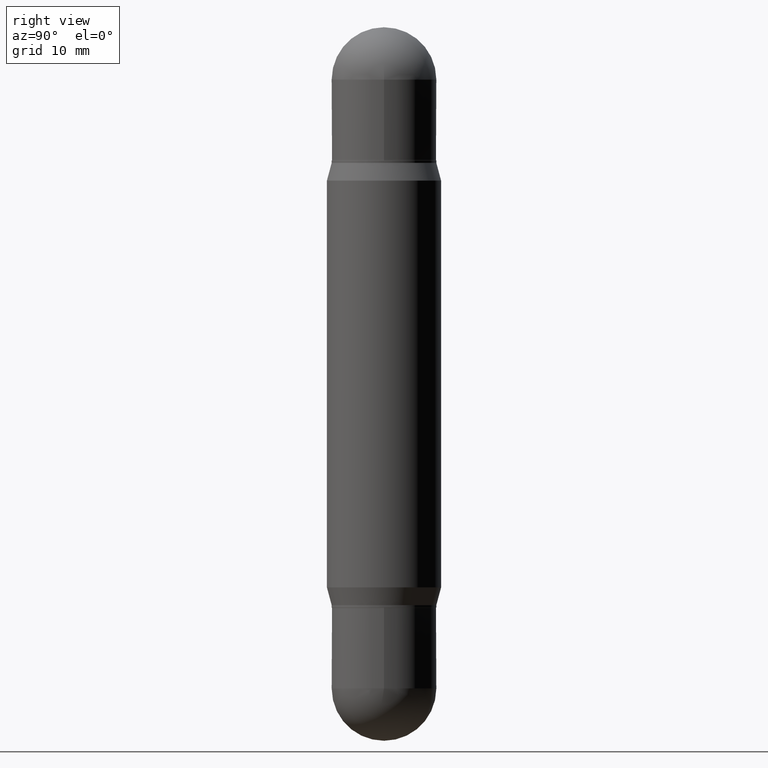
[diagram: clean part render]
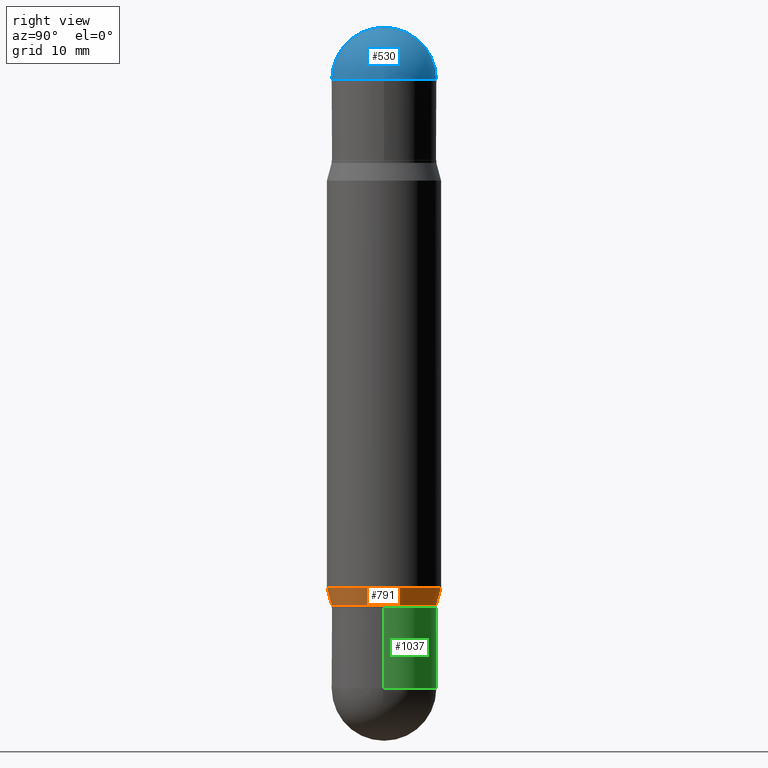
[diagram: same view with three faces highlighted in distinct colors, each labeled with its STEP entity id]
A machine part, right view with three faces highlighted in distinct colors.
Their STEP definitions:

[orange] entity #791 — the highlighted conical surface has half-angle 15 deg.
#67 = VECTOR ( 'NONE', #513, 39.37007874015748854 ) ;
#70 = ORIENTED_EDGE ( 'NONE', *, *, #766, .F. ) ;
#114 = FACE_OUTER_BOUND ( 'NONE', #1009, .T. ) ;
#175 = EDGE_CURVE ( 'NONE', #826, #727, #650, .T. ) ;
#204 = LINE ( 'NONE', #1064, #1007 ) ;
#233 = ORIENTED_EDGE ( 'NONE', *, *, #175, .T. ) ;
#235 = AXIS2_PLACEMENT_3D ( 'NONE', #725, #807, #382 ) ;
#238 = AXIS2_PLACEMENT_3D ( 'NONE', #495, #823, #489 ) ;
#299 = DIRECTION ( 'NONE',  ( -1.807323732225339211E-15, -0.2588190451025194627, 0.9659258262890687563 ) ) ;
#370 = CONICAL_SURFACE ( 'NONE', #238, 0.2165500000000000203, 0.2617993877991515173 ) ;
#382 = DIRECTION ( 'NONE',  ( -6.982962677686265133E-15, -1.000000000000000000, 3.784596620176766988E-15 ) ) ;
#384 = AXIS2_PLACEMENT_3D ( 'NONE', #480, #912, #490 ) ;
#389 = EDGE_CURVE ( 'NONE', #928, #1086, #831, .T. ) ;
#424 = ORIENTED_EDGE ( 'NONE', *, *, #456, .T. ) ;
#456 = EDGE_CURVE ( 'NONE', #727, #1086, #1113, .T. ) ;
#462 = CARTESIAN_POINT ( 'NONE',  ( 1.620449627073671761E-15, 0.2361999999999919164, -2.318265201631272365 ) ) ;
#480 = CARTESIAN_POINT ( 'NONE',  ( 5.665135688342295588E-29, -8.100064794776730323E-15, -2.318265201631271477 ) ) ;
#489 = DIRECTION ( 'NONE',  ( -6.982962677686265133E-15, -1.000000000000000000, 3.784596620176766988E-15 ) ) ;
#490 = DIRECTION ( 'NONE',  ( -6.982962677686265922E-15, -1.000000000000000000, 3.469747663417777397E-15 ) ) ;
#495 = CARTESIAN_POINT ( 'NONE',  ( 5.844343650892796996E-29, -8.356298041119984560E-15, -2.391599999999999060 ) ) ;
#513 = DIRECTION ( 'NONE',  ( 1.839019923739608598E-15, 0.2588190451025261241, 0.9659258262890667579 ) ) ;
#590 = CARTESIAN_POINT ( 'NONE',  ( -1.649375784469439333E-15, -0.2362000000000080979, -2.318265201631270589 ) ) ;
#591 = CARTESIAN_POINT ( 'NONE',  ( 1.538680294288555275E-15, 0.2165499999999916381, -2.391599999999999948 ) ) ;
#640 = CARTESIAN_POINT ( 'NONE',  ( 1.538680294288555472E-15, 0.2165499999999916381, -2.391599999999999948 ) ) ;
#650 = CIRCLE ( 'NONE', #235, 0.2165500000000000203 ) ;
#725 = CARTESIAN_POINT ( 'NONE',  ( 5.844343650892796996E-29, -8.356298041119984560E-15, -2.391599999999999060 ) ) ;
#727 = VERTEX_POINT ( 'NONE', #640 ) ;
#742 = CARTESIAN_POINT ( 'NONE',  ( -1.512160567852902447E-15, -0.2165500000000083747, -2.391599999999998172 ) ) ;
#766 = EDGE_CURVE ( 'NONE', #826, #928, #204, .T. ) ;
#791 = ADVANCED_FACE ( 'NONE', ( #114 ), #370, .T. ) ;
#807 = DIRECTION ( 'NONE',  ( -2.443696124307074357E-29, 3.494019920187317329E-15, 1.000000000000000000 ) ) ;
#823 = DIRECTION ( 'NONE',  ( -2.443696124307074357E-29, 3.494019920187317329E-15, 1.000000000000000000 ) ) ;
#826 = VERTEX_POINT ( 'NONE', #742 ) ;
#831 = CIRCLE ( 'NONE', #384, 0.2361999999999999933 ) ;
#837 = ORIENTED_EDGE ( 'NONE', *, *, #389, .F. ) ;
#912 = DIRECTION ( 'NONE',  ( -2.443696124307074357E-29, 3.494019920187317329E-15, 1.000000000000000000 ) ) ;
#928 = VERTEX_POINT ( 'NONE', #590 ) ;
#1007 = VECTOR ( 'NONE', #299, 39.37007874015747433 ) ;
#1009 = EDGE_LOOP ( 'NONE', ( #233, #424, #837, #70 ) ) ;
#1064 = CARTESIAN_POINT ( 'NONE',  ( -1.512160567852902447E-15, -0.2165500000000083747, -2.391599999999998172 ) ) ;
#1086 = VERTEX_POINT ( 'NONE', #462 ) ;
#1113 = LINE ( 'NONE', #591, #67 ) ;

[blue] entity #530 — the highlighted spherical surface has radius 5.5004 mm.
#2 = CARTESIAN_POINT ( 'NONE',  ( 0.2165500000000001035, -2.865417820986029909E-15, -0.2165500000000001868 ) ) ;
#28 = DIRECTION ( 'NONE',  ( -1.000000000000000000, 6.982962677686265922E-15, 1.566701062080016245E-31 ) ) ;
#77 = CARTESIAN_POINT ( 'NONE',  ( 1.512160567853029651E-15, 0.2165499999999994929, -0.2165500000000009362 ) ) ;
#97 = EDGE_CURVE ( 'NONE', #150, #470, #214, .T. ) ;
#102 = AXIS2_PLACEMENT_3D ( 'NONE', #680, #865, #845 ) ;
#124 = ORIENTED_EDGE ( 'NONE', *, *, #97, .T. ) ;
#138 = EDGE_LOOP ( 'NONE', ( #825, #234, #124, #392 ) ) ;
#150 = VERTEX_POINT ( 'NONE', #246 ) ;
#158 = CIRCLE ( 'NONE', #867, 0.2165500000000003811 ) ;
#185 = EDGE_CURVE ( 'NONE', #212, #535, #158, .T. ) ;
#196 = AXIS2_PLACEMENT_3D ( 'NONE', #300, #404, #771 ) ;
#212 = VERTEX_POINT ( 'NONE', #874 ) ;
#214 = CIRCLE ( 'NONE', #102, 0.2165500000000001035 ) ;
#234 = ORIENTED_EDGE ( 'NONE', *, *, #347, .T. ) ;
#244 = FACE_OUTER_BOUND ( 'NONE', #138, .T. ) ;
#246 = CARTESIAN_POINT ( 'NONE',  ( -1.485640841417359468E-15, -0.2165500000000009917, -0.2165499999999994374 ) ) ;
#300 = CARTESIAN_POINT ( 'NONE',  ( 6.691414020924079206E-29, -7.710307624460063053E-16, -0.2165500000000001868 ) ) ;
#343 = DIRECTION ( 'NONE',  ( 1.000000000000000000, -6.982962677686265922E-15, -1.566701062080038578E-31 ) ) ;
#347 = EDGE_CURVE ( 'NONE', #212, #150, #762, .T. ) ;
#392 = ORIENTED_EDGE ( 'NONE', *, *, #429, .T. ) ;
#404 = DIRECTION ( 'NONE',  ( 2.445468806185136597E-29, 3.479614466977828254E-15, 1.000000000000000000 ) ) ;
#418 = AXIS2_PLACEMENT_3D ( 'NONE', #1109, #343, #601 ) ;
#429 = EDGE_CURVE ( 'NONE', #470, #535, #746, .T. ) ;
#470 = VERTEX_POINT ( 'NONE', #2 ) ;
#530 = ADVANCED_FACE ( 'NONE', ( #244 ), #1020, .T. ) ;
#535 = VERTEX_POINT ( 'NONE', #77 ) ;
#568 = DIRECTION ( 'NONE',  ( 1.000000000000000000, -6.860497997771530774E-15, -5.827999781331232286E-31 ) ) ;
#601 = DIRECTION ( 'NONE',  ( 6.982962677686265922E-15, 1.000000000000000000, -3.469213568495363757E-15 ) ) ;
#667 = DIRECTION ( 'NONE',  ( 6.860497997771531562E-15, 1.000000000000000000, 0.000000000000000000 ) ) ;
#680 = CARTESIAN_POINT ( 'NONE',  ( 6.691414020924079206E-29, -7.710307624460063053E-16, -0.2165500000000001868 ) ) ;
#708 = CARTESIAN_POINT ( 'NONE',  ( 6.713302002095624841E-29, -7.396859276218296457E-16, -0.2165500000000001868 ) ) ;
#737 = CARTESIAN_POINT ( 'NONE',  ( 6.713302002095624841E-29, -7.396859276218296457E-16, -0.2165500000000001868 ) ) ;
#746 = CIRCLE ( 'NONE', #196, 0.2165500000000001035 ) ;
#762 = CIRCLE ( 'NONE', #847, 0.2165500000000003811 ) ;
#771 = DIRECTION ( 'NONE',  ( 1.000000000000000000, -6.982962677686265922E-15, 0.000000000000000000 ) ) ;
#825 = ORIENTED_EDGE ( 'NONE', *, *, #185, .F. ) ;
#845 = DIRECTION ( 'NONE',  ( 1.000000000000000000, -6.982962677686265922E-15, 0.000000000000000000 ) ) ;
#847 = AXIS2_PLACEMENT_3D ( 'NONE', #737, #568, #667 ) ;
#865 = DIRECTION ( 'NONE',  ( 2.445468806185136597E-29, 3.479614466977828254E-15, 1.000000000000000000 ) ) ;
#867 = AXIS2_PLACEMENT_3D ( 'NONE', #708, #28, #1067 ) ;
#874 = CARTESIAN_POINT ( 'NONE',  ( 7.252127585071107106E-29, 2.708444841998830582E-17, 2.048885995248197414E-16 ) ) ;
#1020 = SPHERICAL_SURFACE ( 'NONE', #418, 0.2165500000000003811 ) ;
#1067 = DIRECTION ( 'NONE',  ( -6.982962677686265922E-15, -1.000000000000000000, 0.000000000000000000 ) ) ;
#1109 = CARTESIAN_POINT ( 'NONE',  ( 6.713302002095624841E-29, -7.396859276218296457E-16, -0.2165500000000001868 ) ) ;

[green] entity #1037 — the highlighted cylindrical surface (partial cylindrical patch) has radius 5.5004 mm, axis along (-0, 0, 1).
#26 = EDGE_CURVE ( 'NONE', #1077, #814, #119, .T. ) ;
#32 = CARTESIAN_POINT ( 'NONE',  ( 1.512160567853029651E-15, 0.2165499999999906944, -2.736250000000000071 ) ) ;
#60 = FACE_OUTER_BOUND ( 'NONE', #1018, .T. ) ;
#94 = CARTESIAN_POINT ( 'NONE',  ( 6.691414020924079206E-29, -9.553565813409555750E-15, -2.736249999999999627 ) ) ;
#104 = CARTESIAN_POINT ( 'NONE',  ( -0.2165500000000001035, -7.430673404099130988E-15, -2.736249999999999627 ) ) ;
#119 = CIRCLE ( 'NONE', #270, 0.2165500000000001035 ) ;
#126 = ORIENTED_EDGE ( 'NONE', *, *, #572, .T. ) ;
#129 = DIRECTION ( 'NONE',  ( -2.445468806185136877E-29, 3.491481338843145188E-15, 1.000000000000000000 ) ) ;
#172 = ORIENTED_EDGE ( 'NONE', *, *, #1073, .F. ) ;
#181 = AXIS2_PLACEMENT_3D ( 'NONE', #280, #962, #971 ) ;
#182 = CARTESIAN_POINT ( 'NONE',  ( 0.2165500000000000758, -9.897302151218658086E-15, -2.401599999999999735 ) ) ;
#199 = AXIS2_PLACEMENT_3D ( 'NONE', #94, #542, #614 ) ;
#270 = AXIS2_PLACEMENT_3D ( 'NONE', #860, #423, #692 ) ;
#280 = CARTESIAN_POINT ( 'NONE',  ( 0.000000000000000000, 0.000000000000000000, 0.000000000000000000 ) ) ;
#305 = EDGE_CURVE ( 'NONE', #1077, #668, #754, .T. ) ;
#307 = EDGE_CURVE ( 'NONE', #1084, #538, #986, .T. ) ;
#412 = CYLINDRICAL_SURFACE ( 'NONE', #181, 0.2165500000000001035 ) ;
#421 = CIRCLE ( 'NONE', #443, 0.2165500000000000758 ) ;
#423 = DIRECTION ( 'NONE',  ( -2.445468806185136597E-29, 3.491481338843145583E-15, 1.000000000000000000 ) ) ;
#443 = AXIS2_PLACEMENT_3D ( 'NONE', #632, #703, #882 ) ;
#452 = ORIENTED_EDGE ( 'NONE', *, *, #305, .F. ) ;
#491 = ORIENTED_EDGE ( 'NONE', *, *, #26, .T. ) ;
#524 = ORIENTED_EDGE ( 'NONE', *, *, #307, .T. ) ;
#538 = VERTEX_POINT ( 'NONE', #607 ) ;
#542 = DIRECTION ( 'NONE',  ( -2.445468806185136597E-29, 3.491481338843145583E-15, 1.000000000000000000 ) ) ;
#572 = EDGE_CURVE ( 'NONE', #814, #1084, #832, .T. ) ;
#577 = CARTESIAN_POINT ( 'NONE',  ( 0.2165500000000001035, -1.512160567852961809E-15, 1.055936080798610456E-29 ) ) ;
#607 = CARTESIAN_POINT ( 'NONE',  ( -0.2165500000000000758, -7.430673404099129410E-15, -2.401599999999999735 ) ) ;
#613 = CARTESIAN_POINT ( 'NONE',  ( 0.2165500000000001035, -1.048151426624058891E-14, -2.736249999999999627 ) ) ;
#614 = DIRECTION ( 'NONE',  ( 1.000000000000000000, -6.982962677686270655E-15, 0.000000000000000000 ) ) ;
#632 = CARTESIAN_POINT ( 'NONE',  ( 5.873037884934223228E-29, -8.385141583365697263E-15, -2.401599999999999735 ) ) ;
#646 = CARTESIAN_POINT ( 'NONE',  ( -0.2165500000000001035, 1.538680294288497688E-15, -1.065195393794700483E-29 ) ) ;
#652 = VECTOR ( 'NONE', #1082, 39.37007874015748143 ) ;
#668 = VERTEX_POINT ( 'NONE', #182 ) ;
#692 = DIRECTION ( 'NONE',  ( 1.000000000000000000, -6.982962677686270655E-15, 0.000000000000000000 ) ) ;
#703 = DIRECTION ( 'NONE',  ( -2.445468806185136597E-29, 3.491481338843145583E-15, 1.000000000000000000 ) ) ;
#754 = LINE ( 'NONE', #577, #811 ) ;
#811 = VECTOR ( 'NONE', #129, 39.37007874015748143 ) ;
#814 = VERTEX_POINT ( 'NONE', #32 ) ;
#832 = CIRCLE ( 'NONE', #199, 0.2165500000000001035 ) ;
#860 = CARTESIAN_POINT ( 'NONE',  ( 6.691414020924079206E-29, -9.553565813409555750E-15, -2.736249999999999627 ) ) ;
#882 = DIRECTION ( 'NONE',  ( 1.000000000000000000, -6.982962677686266711E-15, 0.000000000000000000 ) ) ;
#962 = DIRECTION ( 'NONE',  ( -2.445468806185136597E-29, 3.491481338843145583E-15, 1.000000000000000000 ) ) ;
#971 = DIRECTION ( 'NONE',  ( 1.000000000000000000, -6.982962677686266711E-15, 4.876176775795935793E-29 ) ) ;
#986 = LINE ( 'NONE', #646, #652 ) ;
#1018 = EDGE_LOOP ( 'NONE', ( #126, #524, #172, #452, #491 ) ) ;
#1037 = ADVANCED_FACE ( 'NONE', ( #60 ), #412, .T. ) ;
#1073 = EDGE_CURVE ( 'NONE', #668, #538, #421, .T. ) ;
#1077 = VERTEX_POINT ( 'NONE', #613 ) ;
#1082 = DIRECTION ( 'NONE',  ( -2.445468806185136877E-29, 3.491481338843145188E-15, 1.000000000000000000 ) ) ;
#1084 = VERTEX_POINT ( 'NONE', #104 ) ;